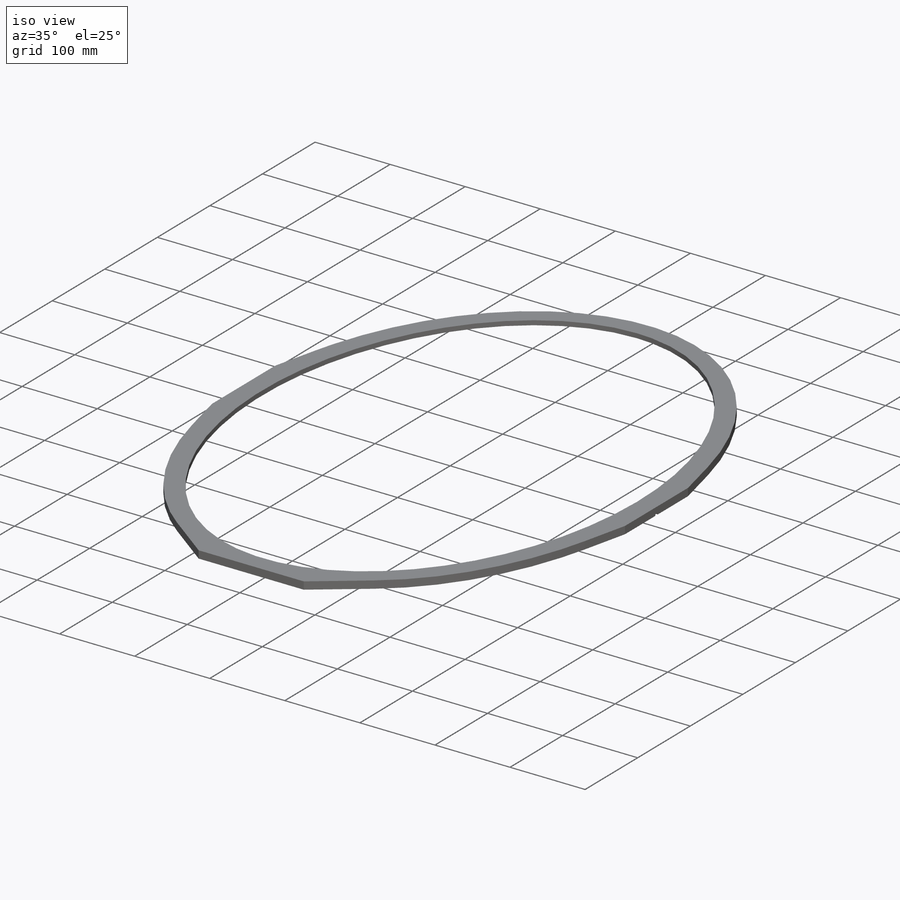
[diagram: iso view]
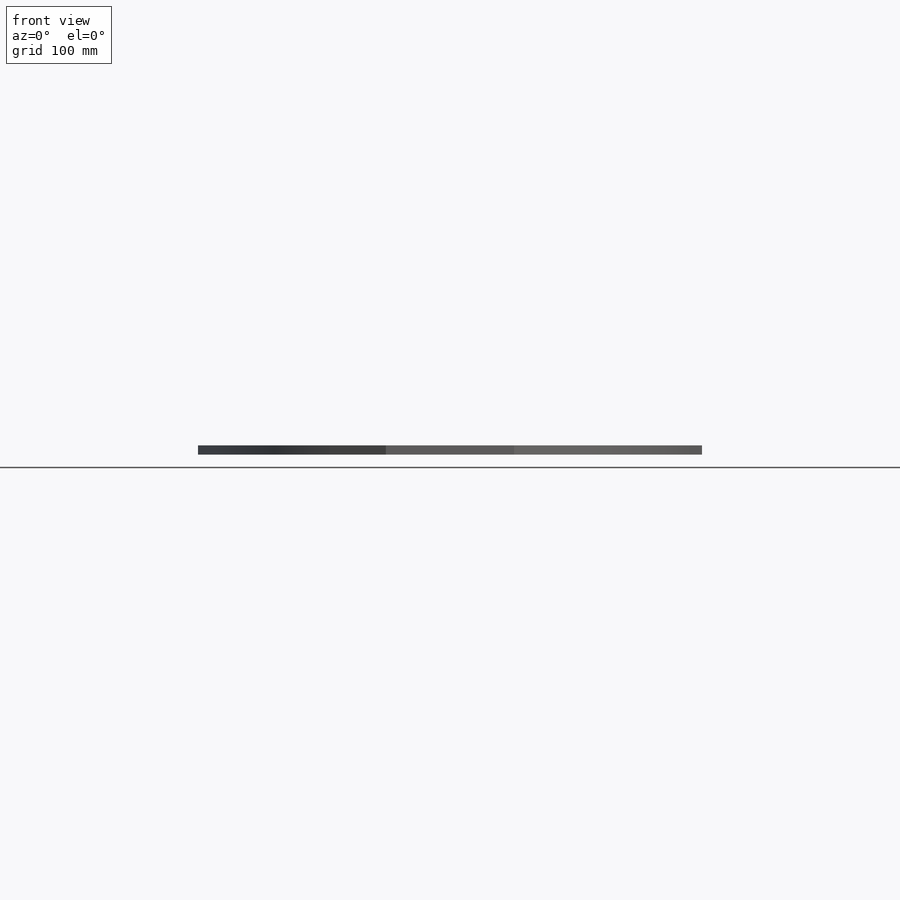
[diagram: front view]
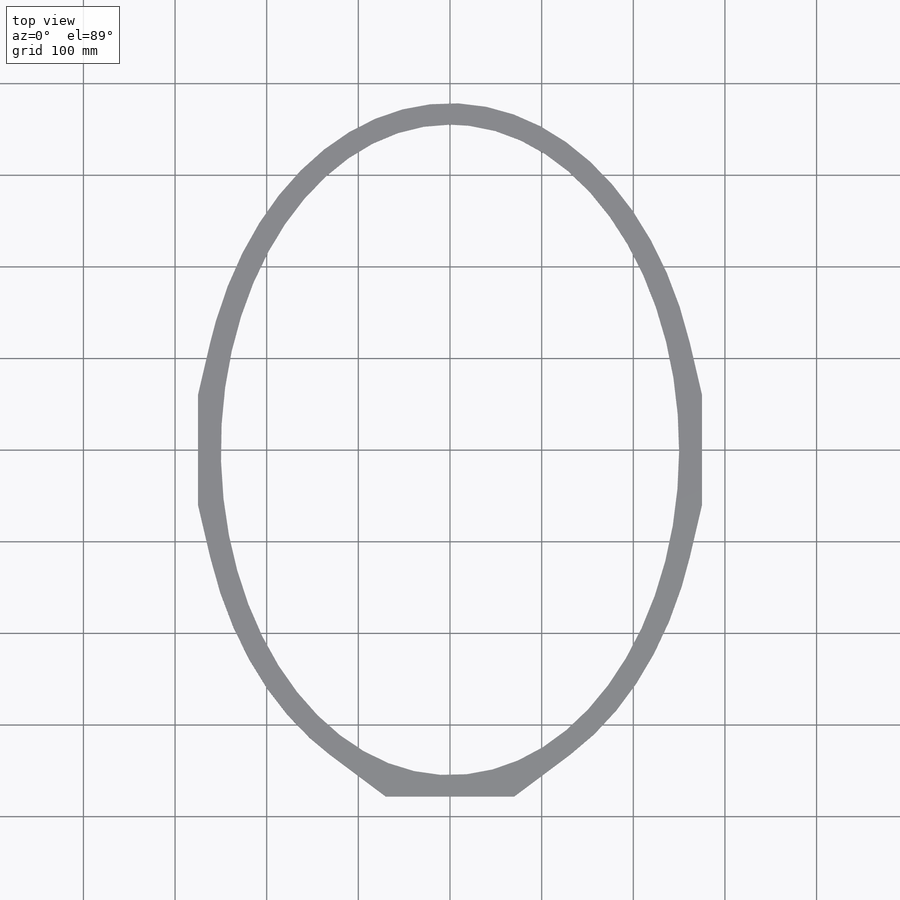
[diagram: top view]
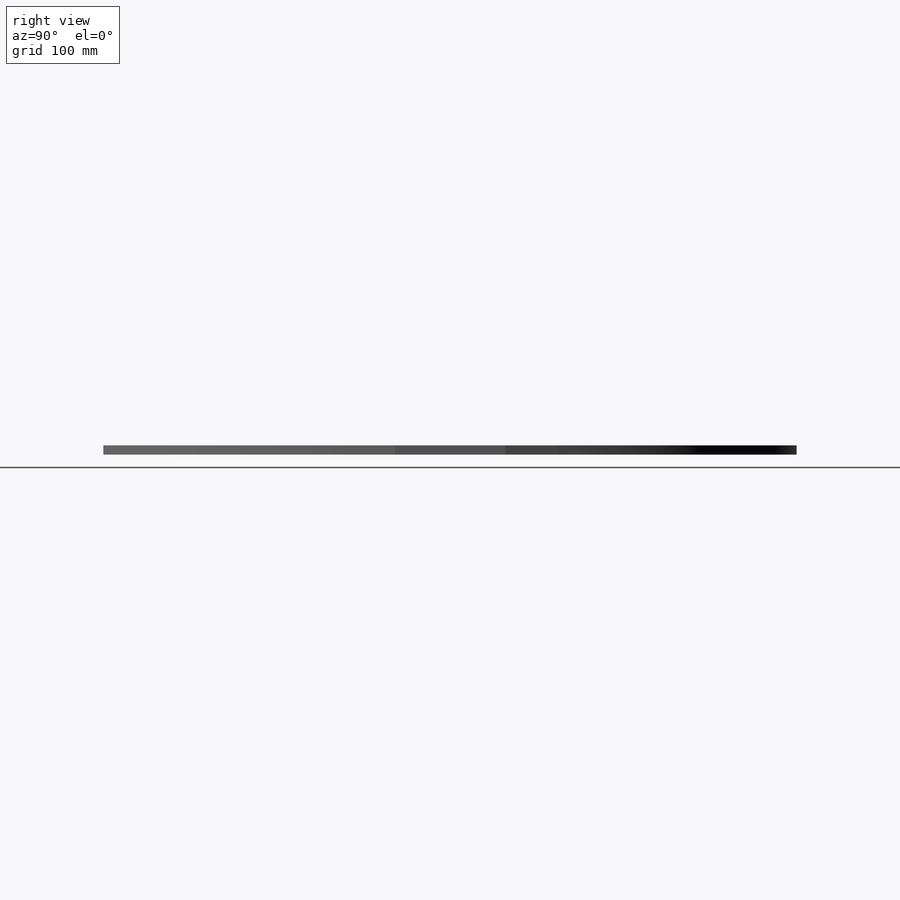
[diagram: right view]
SOLIDWORKS PART (.sldprt)
format: sldprt  version: not decoded by parser v0  size: 229,376 bytes
history: native  units: mm
features: sketch x5, cut_extrude x3, extrude x2, material x1 (+11 scaffold rows collapsed)
feature tree (22):
  scaffold x11  (default folders/planes/origin — collapsed)
  material  "Material <not specified>"
  sketch  "Sketch1"  dims[c1.D1=500.0mm c1.D2=710.0mm c1.D3=550.0mm c1.D4=760.0mm c1.D5=20.0mm c1.D6=260.0mm c1.D7=60.0mm c2.D6=275.0mm]
  extrude  "Boss-Extrude1"  Depth=10mm
  sketch  "Sketch2"  dims[D1=10.0mm D2=10.0mm]
  cut_extrude  "Cut-Extrude1"  Depth=4mm
  sketch  "Sketch3"  dims[D1=70.0mm]
  extrude  "Boss-Extrude2"  Depth=10mm
  sketch  "Sketch4"  dims[D1=5.0mm]
  cut_extrude  "Cut-Extrude4"  Depth=10mm
  sketch  "Sketch5"  dims[D1=5.0mm]
  cut_extrude  "Cut-Extrude5"  Depth=10mm
decode coverage: 10 of 10 modeling features carry decoded parameters
note: suppression state not decoded; provenance and decode notes live in map.json
